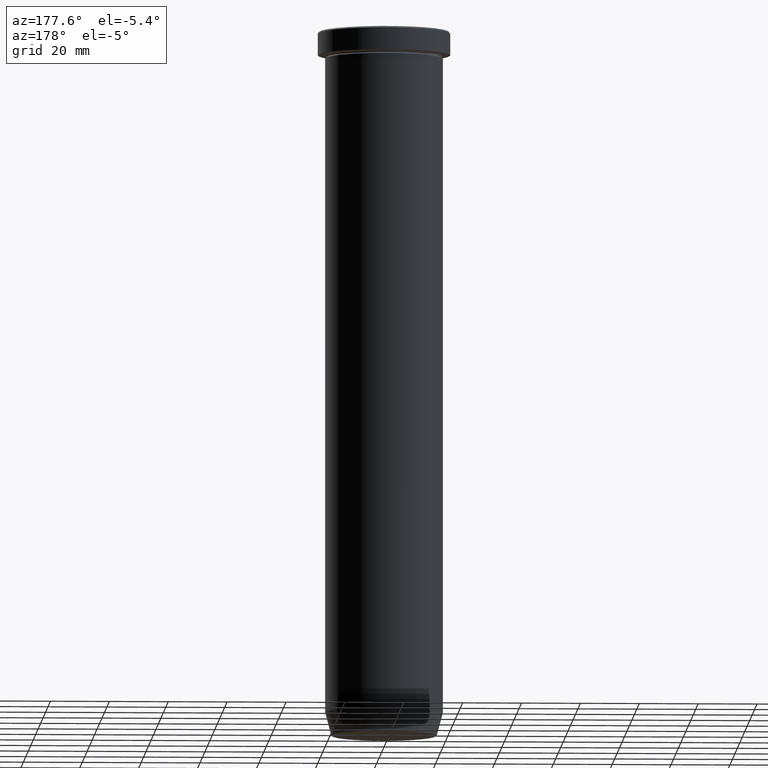
[diagram: clean part render]
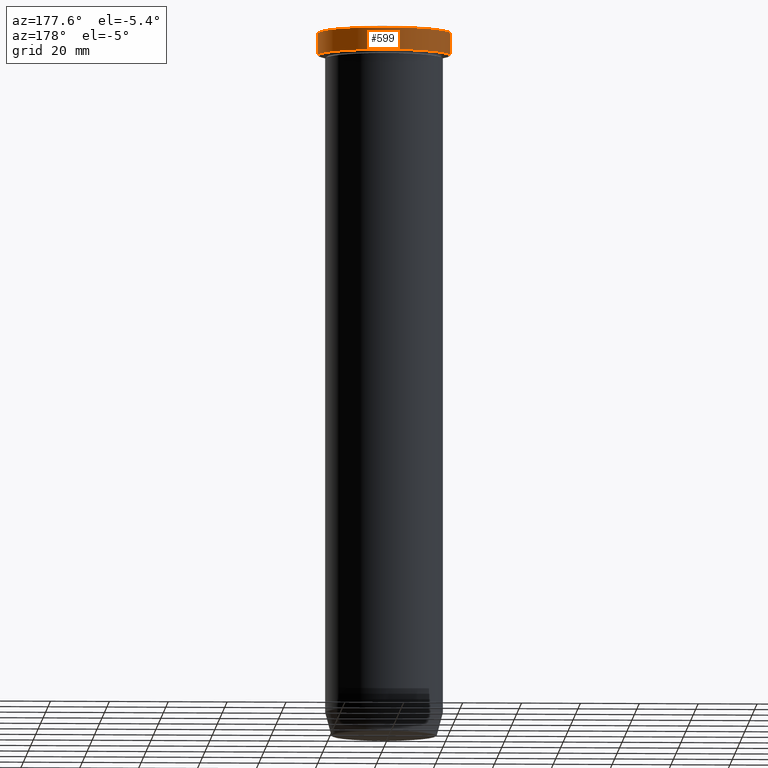
[diagram: same view with one face highlighted and labeled with its STEP entity id]
A machine part, auxiliary view. The second image highlights one B-rep face of the part: STEP entity #599.
In plain terms, the highlighted cylindrical surface (partial cylindrical patch) has radius 22.5 mm, axis along (-0, -0, 1).
Its self-contained STEP definition (entity closure, byte-faithful):
#17 = CARTESIAN_POINT ( 'NONE',  ( 0.000000000000000000, 0.000000000000000000, 0.000000000000000000 ) ) ;
#32 = EDGE_LOOP ( 'NONE', ( #369, #200, #66, #192 ) ) ;
#40 = CARTESIAN_POINT ( 'NONE',  ( 0.000000000000000000, 0.000000000000000000, -0.5000000000000004441 ) ) ;
#42 = DIRECTION ( 'NONE',  ( -0.000000000000000000, -0.000000000000000000, 1.000000000000000000 ) ) ;
#59 = CARTESIAN_POINT ( 'NONE',  ( -22.50000000000000000, 2.755455298081544778E-15, -0.5000000000000004441 ) ) ;
#66 = ORIENTED_EDGE ( 'NONE', *, *, #103, .T. ) ;
#91 = DIRECTION ( 'NONE',  ( 0.000000000000000000, 0.000000000000000000, -1.000000000000000000 ) ) ;
#98 = FACE_OUTER_BOUND ( 'NONE', #32, .T. ) ;
#103 = EDGE_CURVE ( 'NONE', #555, #284, #134, .T. ) ;
#134 = CIRCLE ( 'NONE', #394, 22.50000000000000000 ) ;
#143 = DIRECTION ( 'NONE',  ( -0.000000000000000000, -0.000000000000000000, 1.000000000000000000 ) ) ;
#144 = EDGE_CURVE ( 'NONE', #567, #555, #586, .T. ) ;
#151 = EDGE_CURVE ( 'NONE', #176, #567, #491, .T. ) ;
#176 = VERTEX_POINT ( 'NONE', #381 ) ;
#192 = ORIENTED_EDGE ( 'NONE', *, *, #505, .F. ) ;
#200 = ORIENTED_EDGE ( 'NONE', *, *, #144, .T. ) ;
#208 = DIRECTION ( 'NONE',  ( 1.000000000000000000, 0.000000000000000000, 0.000000000000000000 ) ) ;
#248 = CARTESIAN_POINT ( 'NONE',  ( -22.50000000000000000, 2.755455298081544778E-15, -7.999999999999998224 ) ) ;
#270 = AXIS2_PLACEMENT_3D ( 'NONE', #313, #42, #419 ) ;
#273 = AXIS2_PLACEMENT_3D ( 'NONE', #17, #471, #208 ) ;
#284 = VERTEX_POINT ( 'NONE', #543 ) ;
#313 = CARTESIAN_POINT ( 'NONE',  ( 0.000000000000000000, 0.000000000000000000, -7.999999999999998224 ) ) ;
#352 = CARTESIAN_POINT ( 'NONE',  ( -22.50000000000000000, 2.755455298081544778E-15, 0.000000000000000000 ) ) ;
#355 = CARTESIAN_POINT ( 'NONE',  ( 22.50000000000000000, 0.000000000000000000, 0.000000000000000000 ) ) ;
#369 = ORIENTED_EDGE ( 'NONE', *, *, #151, .T. ) ;
#381 = CARTESIAN_POINT ( 'NONE',  ( 22.50000000000000000, 0.000000000000000000, -7.999999999999998224 ) ) ;
#394 = AXIS2_PLACEMENT_3D ( 'NONE', #40, #91, #462 ) ;
#419 = DIRECTION ( 'NONE',  ( 1.000000000000000000, 0.000000000000000000, 0.000000000000000000 ) ) ;
#447 = LINE ( 'NONE', #355, #468 ) ;
#462 = DIRECTION ( 'NONE',  ( 1.000000000000000000, 0.000000000000000000, 0.000000000000000000 ) ) ;
#466 = CYLINDRICAL_SURFACE ( 'NONE', #273, 22.50000000000000000 ) ;
#468 = VECTOR ( 'NONE', #143, 1000.000000000000000 ) ;
#471 = DIRECTION ( 'NONE',  ( -0.000000000000000000, -0.000000000000000000, 1.000000000000000000 ) ) ;
#491 = CIRCLE ( 'NONE', #270, 22.50000000000000000 ) ;
#505 = EDGE_CURVE ( 'NONE', #176, #284, #447, .T. ) ;
#540 = DIRECTION ( 'NONE',  ( -0.000000000000000000, -0.000000000000000000, 1.000000000000000000 ) ) ;
#543 = CARTESIAN_POINT ( 'NONE',  ( 22.50000000000000000, 0.000000000000000000, -0.5000000000000004441 ) ) ;
#555 = VERTEX_POINT ( 'NONE', #59 ) ;
#567 = VERTEX_POINT ( 'NONE', #248 ) ;
#582 = VECTOR ( 'NONE', #540, 1000.000000000000000 ) ;
#586 = LINE ( 'NONE', #352, #582 ) ;
#599 = ADVANCED_FACE ( 'NONE', ( #98 ), #466, .T. ) ;